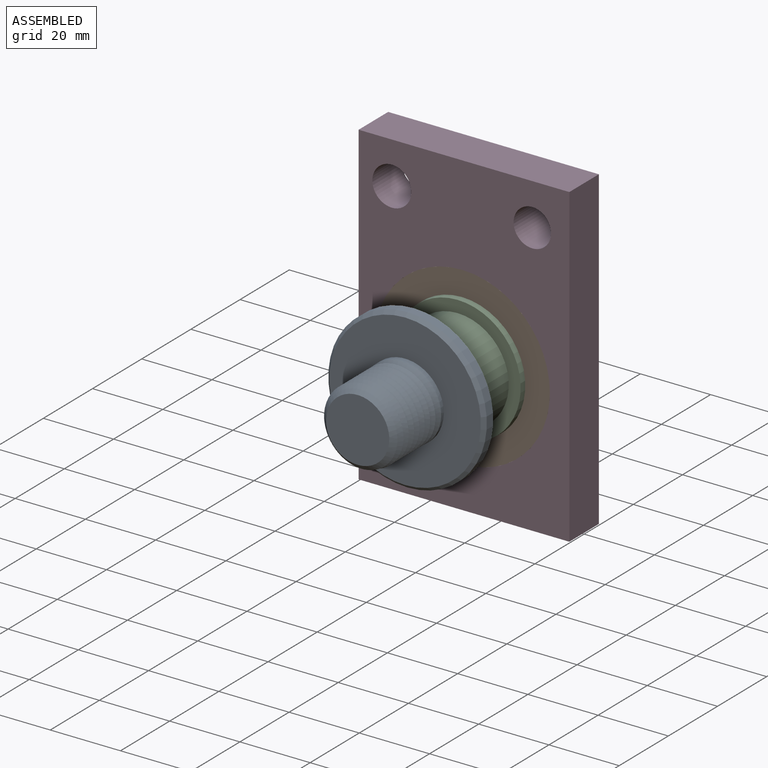
[diagram: assembled view]
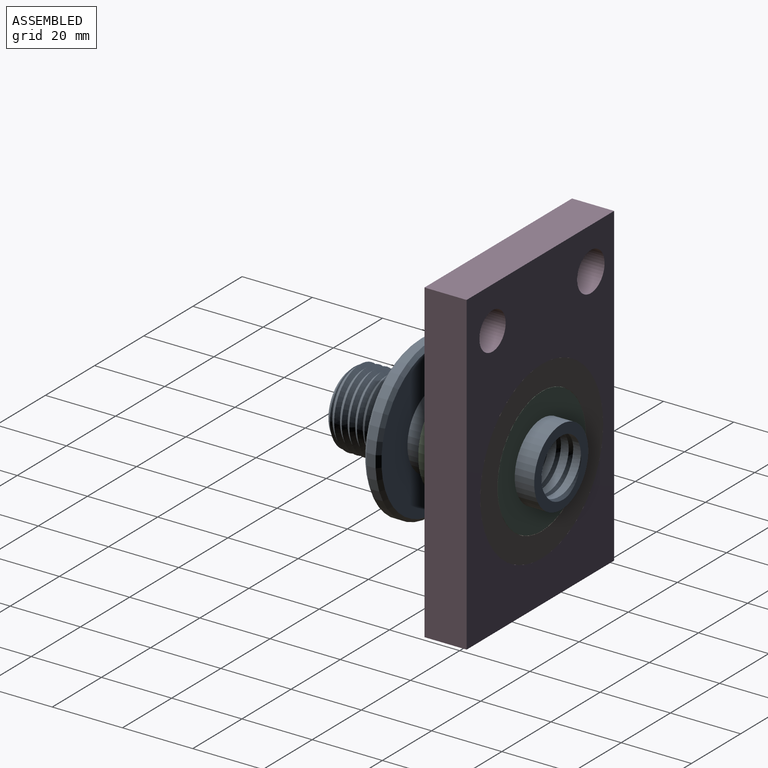
[diagram: assembled view, second angle]
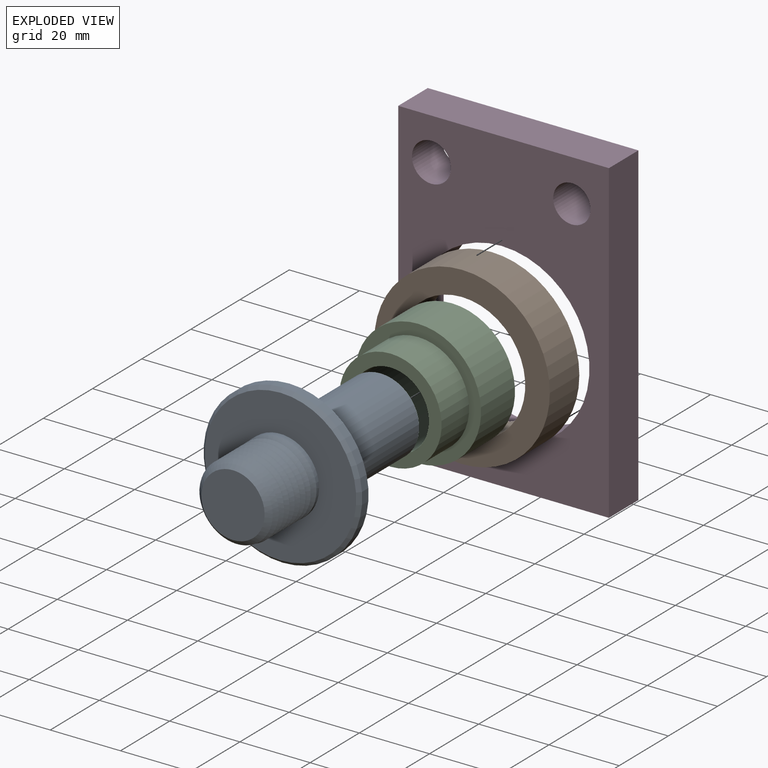
[diagram: exploded view]
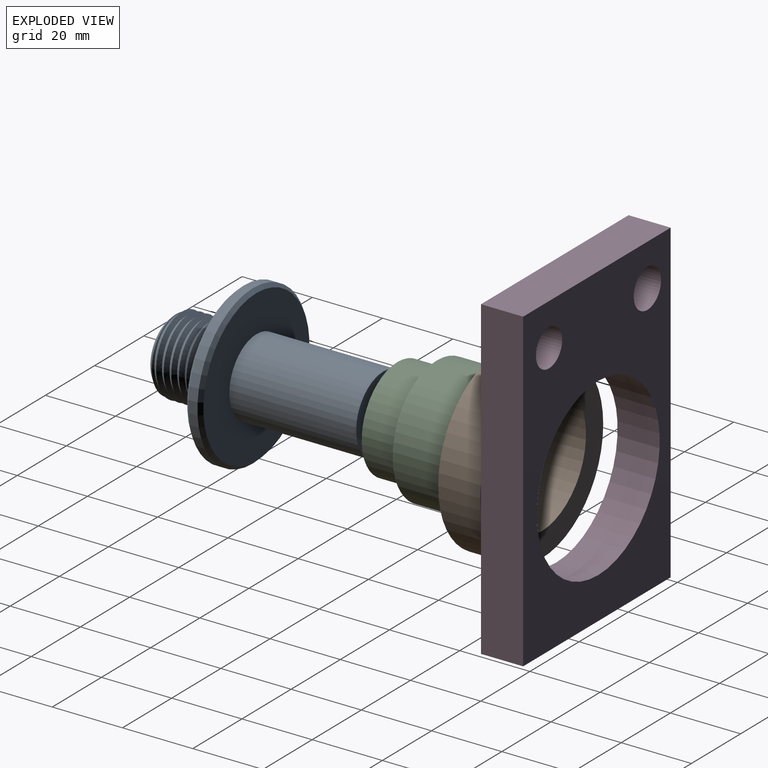
[diagram: exploded view, second angle]
ASSEMBLY  parts=4 mates=3
PART A: 19 faces, bbox 45.5x61.4x45.5 mm
  f0: cylinder r=11mm len=36.1mm, axis (0,1,0), area 2495.1mm2, adj f1,f9
  f1: plane 22.41x22.41mm, normal (0,1,0), area 170.1mm2, adj f0,f2,f4,f5
  f2: cylinder r=8mm len=17.5mm, axis (0,1,0), area 552.9mm2, adj f1,f3,f4,f5,f6
  f3: plane 16x16mm, normal (0,1,0), area 201.1mm2, adj f2
  f4: bspline ~20.54x18.19mm, area 293.7mm2, adj f1,f2,f5,f6
  f5: bspline ~20.54x17.79mm, area 278.2mm2, adj f1,f2,f4,f6
  f6: plane 1.35x0.89mm, normal (0,0,1), area 0.6mm2, adj f2,f4,f5
  f7: cylinder r=22.57mm len=45.13mm, axis (0,1,0), area 368.7mm2, adj f17,f18
  f8: plane 43.13x43.13mm, normal (0,-1,0), area 1081.1mm2, adj f10,f17
  f9: plane 43.13x43.13mm, normal (0,1,0), area 1081.1mm2, adj f0,f18
  f10: cylinder r=11mm len=22mm, axis (0,1,0), area 74.7mm2, adj f8,f11,f13
  f11: plane 2.25x1.13mm, normal (0,0,-1), area 1.3mm2, adj f10,f12,f13,f14
  f12: bspline ~25.24x21.86mm, area 847.4mm2, adj f11,f13,f14,f16
  f13: bspline ~25.4x22mm, area 7.5mm2, adj f10,f11,f12
  f14: bspline ~25.24x21.86mm, area 682.3mm2, adj f11,f12,f16
  f15: plane 18x18mm, normal (0,-1,0), area 254.5mm2, adj f16
  f16: cone r=9mm half-angle=45deg, axis (0,1,0), area 121.2mm2, adj f12,f14,f15
  f17: cone r=21.57mm half-angle=45deg, axis (0,1,0), area 196.1mm2, adj f7,f8
  f18: cone r=22.57mm half-angle=45deg, axis (0,-1,0), area 196.1mm2, adj f7,f9
PART B: 4 faces, bbox 50x12x50 mm
  f0: cylinder r=18mm len=36mm, axis (0,1,0), area 1357.2mm2, adj f2,f3
  f1: cylinder r=25mm len=50mm, axis (0,1,0), area 1885mm2, adj f2,f3
  f2: plane 50x50mm, normal (0,-1,0), area 945.6mm2, adj f0,f1
  f3: plane 50x50mm, normal (0,1,0), area 945.6mm2, adj f0,f1
PART C: 6 faces, bbox 35.9x25x35.9 mm
  f0: cylinder r=17.95mm len=35.9mm, axis (0,1,0), area 1556.4mm2, adj f3,f4
  f1: plane 29.11x29.11mm, normal (0,-1,0), area 289mm2, adj f2,f5
  f2: cylinder r=10.95mm len=25mm, axis (0,1,0), area 1720mm2, adj f1,f3
  f3: plane 35.9x35.9mm, normal (0,1,0), area 635.5mm2, adj f0,f2
  f4: plane 35.9x35.9mm, normal (0,-1,0), area 346.5mm2, adj f0,f5
  f5: cylinder r=14.56mm len=29.11mm, axis (0,1,0), area 1024.4mm2, adj f1,f4
PART D: 9 faces, bbox 60x12x90 mm
  f0: plane 60x12mm, normal (0,0,1), area 720mm2, adj f1,f3,f4,f5
  f1: plane 90x12mm, normal (-1,0,0), area 1080mm2, adj f0,f2,f4,f5
  f2: plane 60x12mm, normal (0,0,-1), area 720mm2, adj f1,f3,f4,f5
  f3: plane 90x12mm, normal (1,0,0), area 1080mm2, adj f0,f2,f4,f5
  f4: plane 90x60mm, normal (0,-1,0), area 3250.6mm2, adj f0,f1,f2,f3,f6,f7,f8
  f5: plane 90x60mm, normal (0,1,0), area 3250.6mm2, adj f0,f1,f2,f3,f6,f7,f8
  f6: cylinder r=25mm len=50mm, axis (0,-1,0), area 1885mm2, adj f4,f5
  f7: cylinder r=5.33mm len=12mm, axis (0,-1,0), area 401.7mm2, adj f4,f5
  f8: cylinder r=5.55mm len=12mm, axis (0,-1,0), area 418.4mm2, adj f4,f5
PLACE A t=(-8.67,8.86,-5.2)mm
PLACE B t=(-8.67,3.31,-5.2)mm
PLACE C t=(-8.67,3.31,-5.2)mm
PLACE D t=(-8.67,3.31,-5.2)mm
MATE revolute A.f0 <-> C.f2  axis (0,1,0) through (-8.67,-9.19,-5.2)mm
MATE fastened B.f1 <-> D.f6  axis (0,1,0) through (-8.67,3.31,-5.2)mm
MATE revolute C.f0 <-> B.f0  axis (0,1,0) through (-8.67,3.31,-5.2)mm
